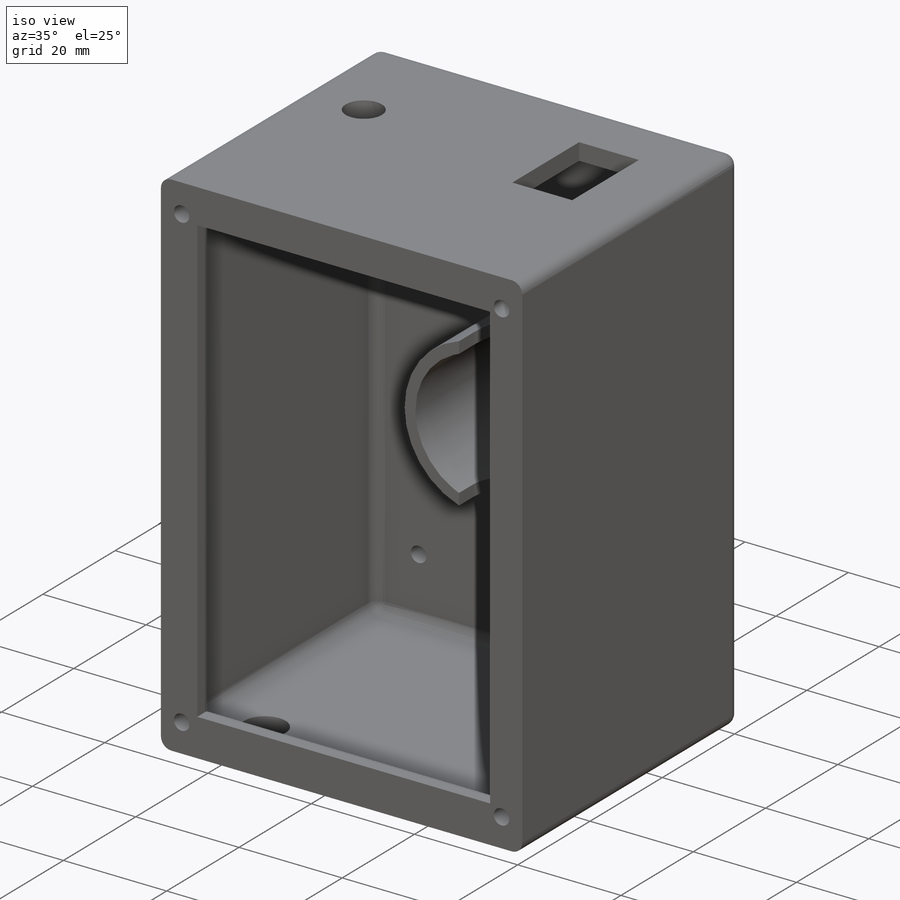
[diagram: iso view]
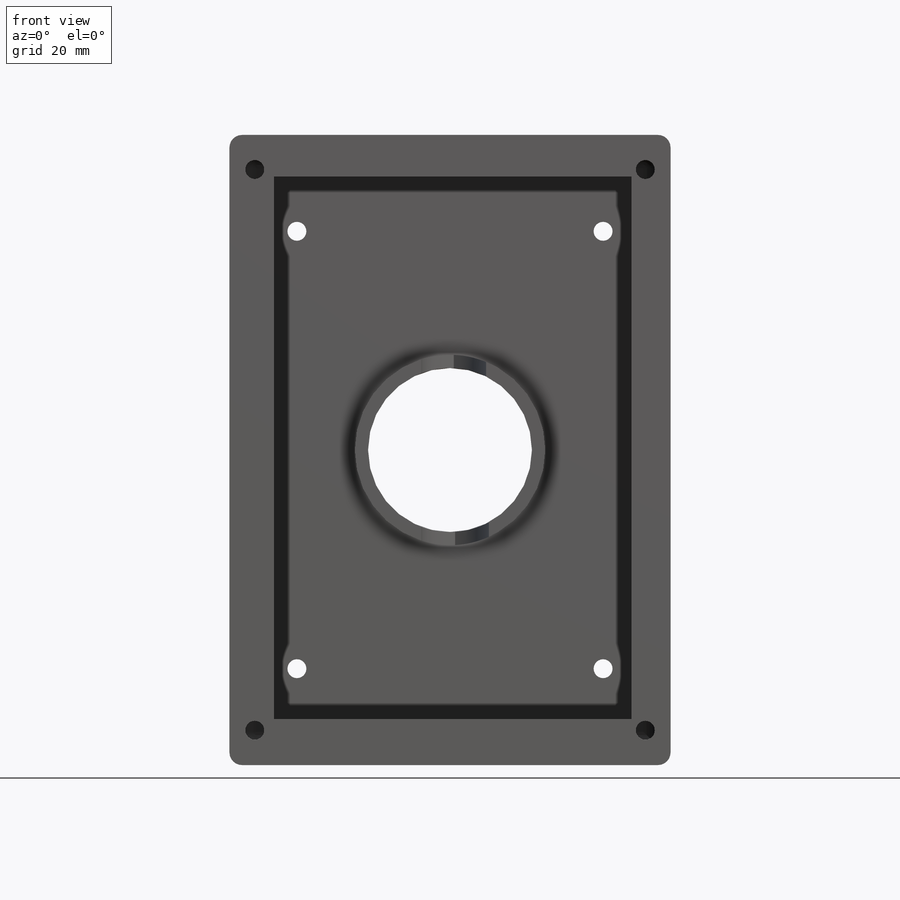
[diagram: front view]
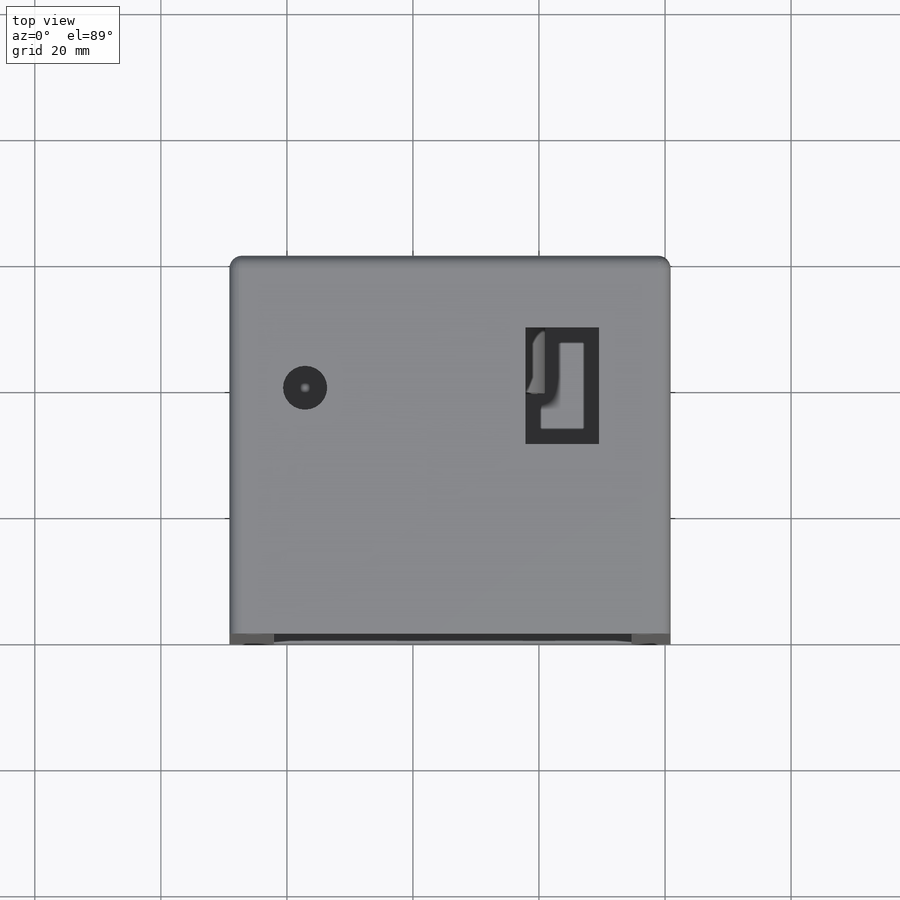
[diagram: top view]
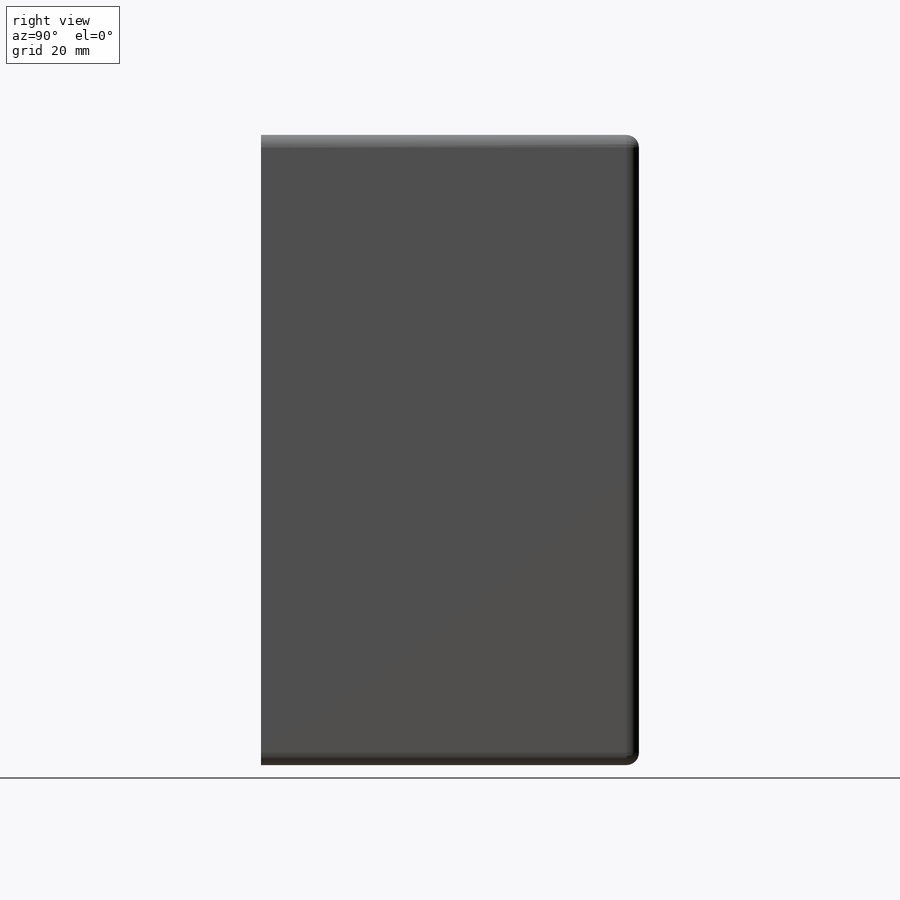
[diagram: right view]
SOLIDWORKS PART (.sldprt)
format: sldprt  version: not decoded by parser v0  size: 441,344 bytes
history: native  units: mm
features: sketch x10, fillet x9, cut_extrude x6, extrude x4, plane x3, material x1 (+10 scaffold rows collapsed)
feature tree (43):
  scaffold x10  (default folders/planes/origin — collapsed)
  material  "Material <não especificado>"
  plane  "Plano frontal"
  plane  "Plano superior"
  plane  "Plano direito"
  sketch  "Esboço1"  dims[D3=26.0mm D1=70.0mm D2=100.0mm]
  extrude  "Ressalto-extrusão1"  Depth=4mm
  sketch  "Esboço2"  dims[D1=26.0mm]
  extrude  "Ressalto-extrusão2"  Depth=21mm
  sketch  "Esboço3"  dims[D1=4.0mm D2=4.0mm]
  extrude  "Ressalto-extrusão3"  Depth=60mm
  fillet  "Filete1"  Radius=2mm
  fillet  "Filete2"  Radius=2mm
  fillet  "Filete3"  Radius=2mm
  fillet  "Filete4"  Radius=2mm
  fillet  "Filete5"  Radius=2mm
  sketch  "Esboço4"  dims[D1=3.0mm D2=3.0mm D3=3.0mm D4=3.0mm D5=6.0mm]
  cut_extrude  "Corte-extrusão1"  Depth=17mm
  fillet  "Filete6"  Radius=2mm
  fillet  "Filete7"  Radius=2mm
  sketch  "3DSketch1"
  extrude  "Ressalto-extrusão4"  Depth=4mm
  sketch  "Esboço5"  dims[D3=3.0mm D4=3.0mm D5=3.0mm D8=3.0mm D1=6.0mm D2=6.0mm D6=6.0mm D7=6.0mm]
  cut_extrude  "Corte-extrusão2"  Depth=14mm
  fillet  "Filete8"  Radius=2mm
  sketch  "Esboço6"  dims[c1.D1=~11.442013mm c1.D2=35.0mm c2.D1=18.5mm c2.D2=11.6mm c2.D3=45.0mm]
  cut_extrude  "Corte-extrusão10"  Depth=22mm
  sketch  "3DSketch2"  dims[D1=0.0mm]
  cut_extrude  "Corte-extrusão11"  Depth=14mm
  fillet  "Filete9"  Radius=10mm
  sketch  "Esboço7"  dims[D2=7.0mm D1=10.0mm D3=19.0mm]
  cut_extrude  "Corte-extrusão12"  Depth=14mm
  sketch  "3DSketch3"  dims[c1.D2=8.0mm c1.D1=15.0mm c2.D2=~15.814616mm c2.D5=~15.814616mm c2.D3=~1.589175mm c3.D2=6.0mm c3.D4=40.0mm]
  cut_extrude  "Corte-extrusão13"  Depth=18mm
decode coverage: 28 of 29 modeling features carry decoded parameters
note: ~ marks probable driven/reference dimensions
note: suppression state not decoded; provenance and decode notes live in map.json
